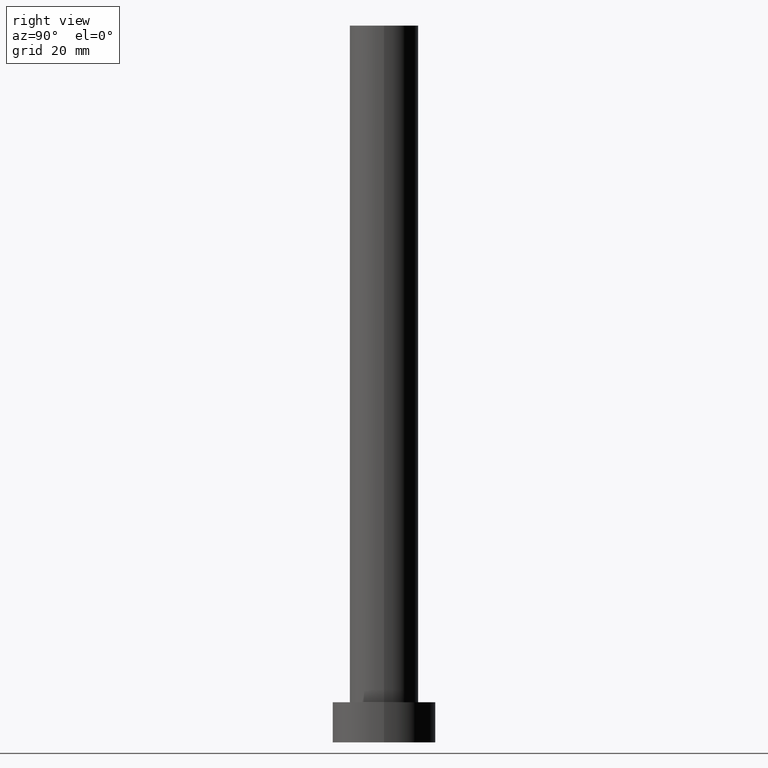
[diagram: clean part render]
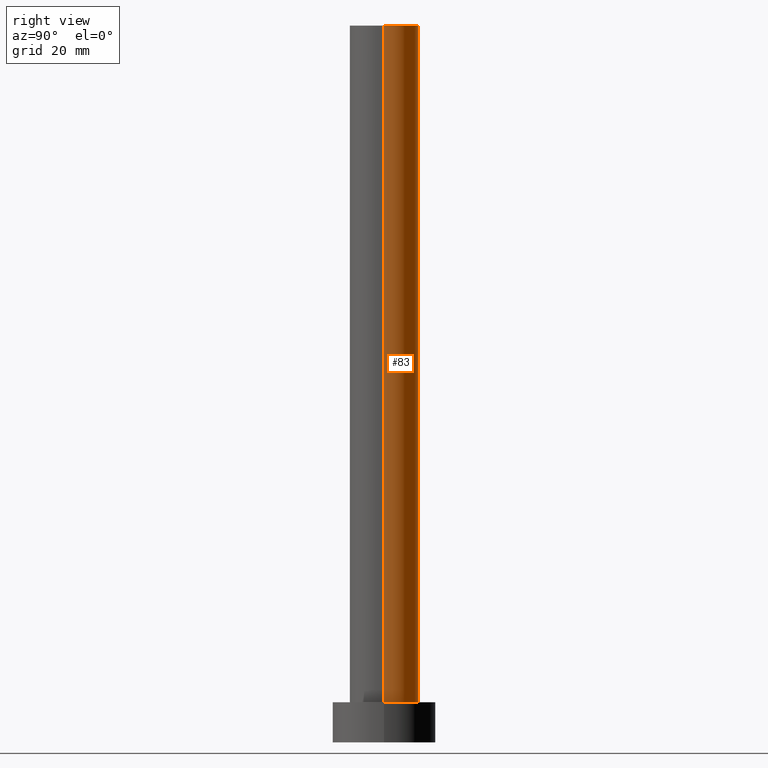
[diagram: same view with one face highlighted and labeled with its STEP entity id]
A machine part, right view. The second image highlights one B-rep face of the part: STEP entity #83.
In plain terms, the highlighted cylindrical surface (edge-blend (fillet) strip) has radius 6 mm, axis along (-0, -0, -1).
Its self-contained STEP definition (entity closure, byte-faithful):
#1 = CARTESIAN_POINT ( 'NONE',  ( -6.000000000000000888, 0.000000000000000000, 7.000000000000000000 ) ) ;
#7 = VECTOR ( 'NONE', #52, 1000.000000000000000 ) ;
#9 = CARTESIAN_POINT ( 'NONE',  ( 0.000000000000000000, 0.000000000000000000, 7.000000000000000000 ) ) ;
#15 = CARTESIAN_POINT ( 'NONE',  ( 6.000000000000000888, 7.347880794884120722E-16, 125.0000000000000000 ) ) ;
#22 = VERTEX_POINT ( 'NONE', #15 ) ;
#34 = CARTESIAN_POINT ( 'NONE',  ( 0.000000000000000000, 0.000000000000000000, 125.0000000000000000 ) ) ;
#47 = DIRECTION ( 'NONE',  ( 1.000000000000000000, 0.000000000000000000, 0.000000000000000000 ) ) ;
#52 = DIRECTION ( 'NONE',  ( -0.000000000000000000, -0.000000000000000000, -1.000000000000000000 ) ) ;
#56 = CYLINDRICAL_SURFACE ( 'NONE', #168, 6.000000000000000888 ) ;
#57 = DIRECTION ( 'NONE',  ( 0.000000000000000000, 0.000000000000000000, 1.000000000000000000 ) ) ;
#72 = DIRECTION ( 'NONE',  ( -0.000000000000000000, -0.000000000000000000, -1.000000000000000000 ) ) ;
#73 = CARTESIAN_POINT ( 'NONE',  ( -6.000000000000000888, 0.000000000000000000, 125.0000000000000000 ) ) ;
#81 = VECTOR ( 'NONE', #182, 1000.000000000000000 ) ;
#82 = VERTEX_POINT ( 'NONE', #229 ) ;
#83 = ADVANCED_FACE ( 'NONE', ( #89 ), #56, .T. ) ;
#85 = AXIS2_PLACEMENT_3D ( 'NONE', #202, #181, #47 ) ;
#86 = LINE ( 'NONE', #73, #7 ) ;
#89 = FACE_OUTER_BOUND ( 'NONE', #93, .T. ) ;
#93 = EDGE_LOOP ( 'NONE', ( #236, #178, #149, #113 ) ) ;
#113 = ORIENTED_EDGE ( 'NONE', *, *, #201, .F. ) ;
#144 = AXIS2_PLACEMENT_3D ( 'NONE', #9, #57, #167 ) ;
#149 = ORIENTED_EDGE ( 'NONE', *, *, #220, .T. ) ;
#155 = LINE ( 'NONE', #235, #81 ) ;
#156 = VERTEX_POINT ( 'NONE', #1 ) ;
#162 = EDGE_CURVE ( 'NONE', #22, #82, #155, .T. ) ;
#167 = DIRECTION ( 'NONE',  ( 1.000000000000000000, 0.000000000000000000, 0.000000000000000000 ) ) ;
#168 = AXIS2_PLACEMENT_3D ( 'NONE', #34, #72, #254 ) ;
#171 = EDGE_CURVE ( 'NONE', #22, #193, #224, .T. ) ;
#178 = ORIENTED_EDGE ( 'NONE', *, *, #162, .T. ) ;
#181 = DIRECTION ( 'NONE',  ( 0.000000000000000000, 0.000000000000000000, 1.000000000000000000 ) ) ;
#182 = DIRECTION ( 'NONE',  ( -0.000000000000000000, -0.000000000000000000, -1.000000000000000000 ) ) ;
#193 = VERTEX_POINT ( 'NONE', #237 ) ;
#201 = EDGE_CURVE ( 'NONE', #193, #156, #86, .T. ) ;
#202 = CARTESIAN_POINT ( 'NONE',  ( 0.000000000000000000, 0.000000000000000000, 125.0000000000000000 ) ) ;
#208 = CIRCLE ( 'NONE', #144, 6.000000000000000888 ) ;
#220 = EDGE_CURVE ( 'NONE', #82, #156, #208, .T. ) ;
#224 = CIRCLE ( 'NONE', #85, 6.000000000000000888 ) ;
#229 = CARTESIAN_POINT ( 'NONE',  ( 6.000000000000000888, 7.347880794884120722E-16, 7.000000000000000000 ) ) ;
#235 = CARTESIAN_POINT ( 'NONE',  ( 6.000000000000000888, 7.347880794884120722E-16, 125.0000000000000000 ) ) ;
#236 = ORIENTED_EDGE ( 'NONE', *, *, #171, .F. ) ;
#237 = CARTESIAN_POINT ( 'NONE',  ( -6.000000000000000888, 0.000000000000000000, 125.0000000000000000 ) ) ;
#254 = DIRECTION ( 'NONE',  ( -1.000000000000000000, 0.000000000000000000, 0.000000000000000000 ) ) ;